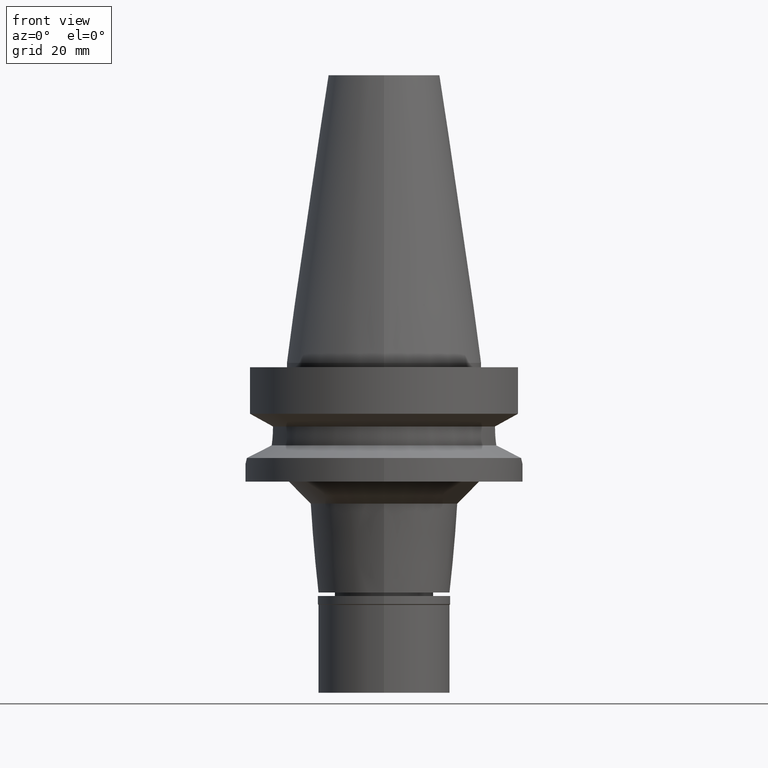
[diagram: clean part render]
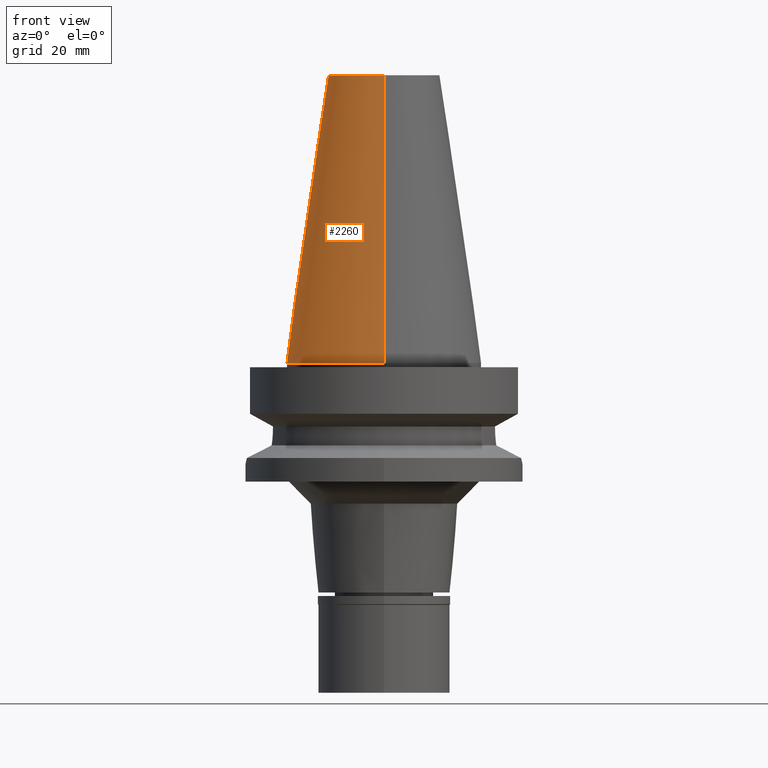
[diagram: same view with one face highlighted and labeled with its STEP entity id]
A machine part, front view. The second image highlights one B-rep face of the part: STEP entity #2260.
In plain terms, the highlighted conical surface has half-angle 8.297 deg.
Its self-contained STEP definition (entity closure, byte-faithful):
#18 = VERTEX_POINT ( 'NONE', #1478 ) ;
#60 = LINE ( 'NONE', #2963, #933 ) ;
#170 = CIRCLE ( 'NONE', #2258, 12.68766899429999917 ) ;
#182 = CARTESIAN_POINT ( 'NONE',  ( 0.0000000000000000000, 22.22500000000000142, 5.684341886080998387E-14 ) ) ;
#220 = CONICAL_SURFACE ( 'NONE', #2196, 17.45633449714999941, 0.1448099680379422438 ) ;
#253 = DIRECTION ( 'NONE',  ( 0.0000000000000000000, 0.1443043893539925626, -0.9895333461855498891 ) ) ;
#347 = VERTEX_POINT ( 'NONE', #447 ) ;
#447 = CARTESIAN_POINT ( 'NONE',  ( 0.0000000000000000000, 12.68766899429999917, 65.40000000000000568 ) ) ;
#471 = CIRCLE ( 'NONE', #1178, 22.22500000000000142 ) ;
#477 = DIRECTION ( 'NONE',  ( 0.0000000000000000000, -0.1443043893539925626, -0.9895333461855498891 ) ) ;
#515 = LINE ( 'NONE', #977, #2299 ) ;
#634 = CARTESIAN_POINT ( 'NONE',  ( 0.0000000000000000000, 1.625106302469000024E-14, 32.70000000000000284 ) ) ;
#850 = CARTESIAN_POINT ( 'NONE',  ( 0.0000000000000000000, 1.625106302469000024E-14, 2.842170943039999687E-14 ) ) ;
#856 = VERTEX_POINT ( 'NONE', #182 ) ;
#933 = VECTOR ( 'NONE', #477, 1000.000000000000114 ) ;
#977 = CARTESIAN_POINT ( 'NONE',  ( 0.0000000000000000000, 12.68766899429999917, 65.40000000000000568 ) ) ;
#1117 = CARTESIAN_POINT ( 'NONE',  ( 0.0000000000000000000, 1.625106302469000024E-14, 65.40000000000000568 ) ) ;
#1178 = AXIS2_PLACEMENT_3D ( 'NONE', #850, #2776, #1322 ) ;
#1322 = DIRECTION ( 'NONE',  ( 0.0000000000000000000, -1.000000000000000000, 0.0000000000000000000 ) ) ;
#1323 = ORIENTED_EDGE ( 'NONE', *, *, #1982, .F. ) ;
#1407 = DIRECTION ( 'NONE',  ( 0.0000000000000000000, -1.000000000000000000, 0.0000000000000000000 ) ) ;
#1478 = CARTESIAN_POINT ( 'NONE',  ( 0.0000000000000000000, -12.68766899429999917, 65.40000000000000568 ) ) ;
#1649 = DIRECTION ( 'NONE',  ( 0.0000000000000000000, 0.0000000000000000000, -1.000000000000000000 ) ) ;
#1792 = ORIENTED_EDGE ( 'NONE', *, *, #2442, .T. ) ;
#1982 = EDGE_CURVE ( 'NONE', #18, #2800, #60, .T. ) ;
#2085 = DIRECTION ( 'NONE',  ( 0.0000000000000000000, 0.0000000000000000000, -1.000000000000000000 ) ) ;
#2196 = AXIS2_PLACEMENT_3D ( 'NONE', #634, #1649, #1407 ) ;
#2258 = AXIS2_PLACEMENT_3D ( 'NONE', #1117, #2085, #2834 ) ;
#2260 = ADVANCED_FACE ( 'NONE', ( #3112 ), #220, .T. ) ;
#2299 = VECTOR ( 'NONE', #253, 1000.000000000000114 ) ;
#2311 = ORIENTED_EDGE ( 'NONE', *, *, #2759, .T. ) ;
#2442 = EDGE_CURVE ( 'NONE', #347, #856, #515, .T. ) ;
#2622 = CARTESIAN_POINT ( 'NONE',  ( 0.0000000000000000000, -22.22500000000000142, 5.684341886080998387E-14 ) ) ;
#2650 = EDGE_CURVE ( 'NONE', #2800, #856, #471, .T. ) ;
#2660 = EDGE_LOOP ( 'NONE', ( #3115, #1323, #2311, #1792 ) ) ;
#2759 = EDGE_CURVE ( 'NONE', #18, #347, #170, .T. ) ;
#2776 = DIRECTION ( 'NONE',  ( 0.0000000000000000000, 0.0000000000000000000, -1.000000000000000000 ) ) ;
#2800 = VERTEX_POINT ( 'NONE', #2622 ) ;
#2834 = DIRECTION ( 'NONE',  ( 0.0000000000000000000, -1.000000000000000000, 0.0000000000000000000 ) ) ;
#2963 = CARTESIAN_POINT ( 'NONE',  ( 0.0000000000000000000, -12.68766899429999917, 65.40000000000000568 ) ) ;
#3112 = FACE_OUTER_BOUND ( 'NONE', #2660, .T. ) ;
#3115 = ORIENTED_EDGE ( 'NONE', *, *, #2650, .F. ) ;